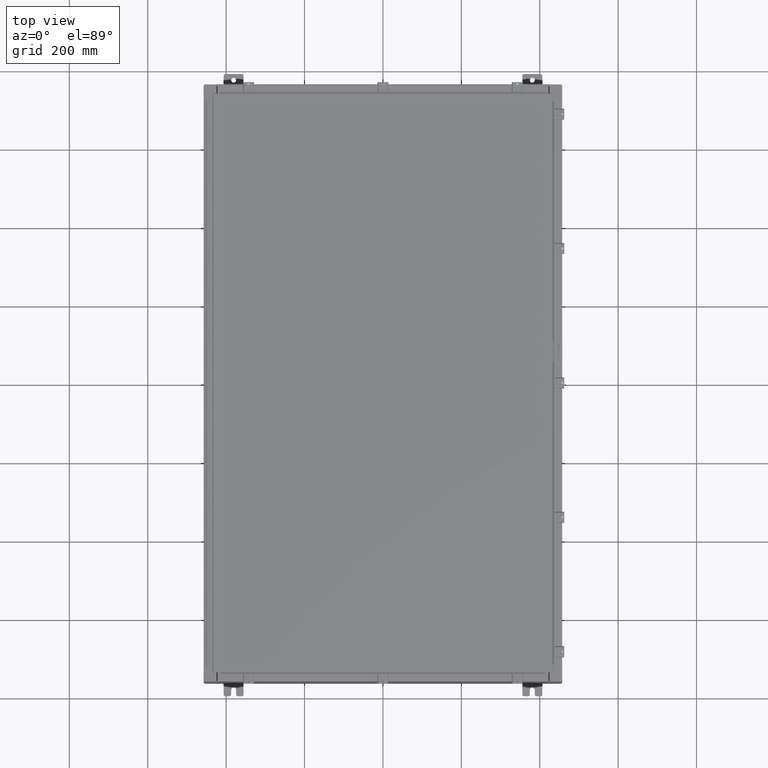
[diagram: clean part render]
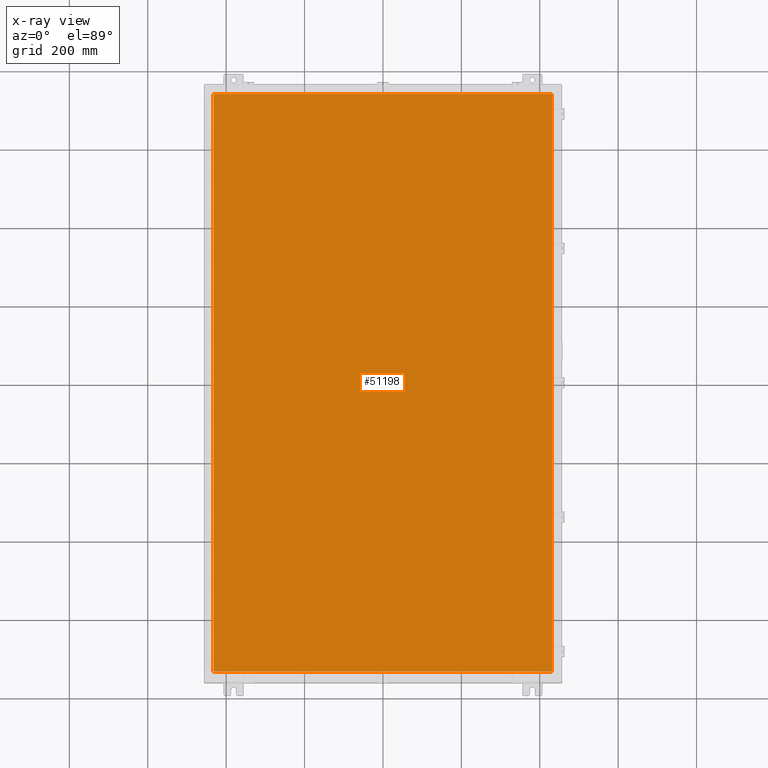
[diagram: x-ray — body ghosted, one internal face saturated and labeled with its STEP entity id]
A machine part, top view, then the same camera in x-ray: the body is ghosted and one INTERNAL B-rep face — a face not visible from any outside direction — is saturated and labeled: STEP entity #51198.
In plain terms, the highlighted planar face has unit normal (0, 0, -1).
Its self-contained STEP definition (entity closure, byte-faithful):
#1041 = DIRECTION ( 'NONE',  ( 0.0000000000000000000, 1.000000000000000000, 0.0000000000000000000 ) ) ;
#3534 = CARTESIAN_POINT ( 'NONE',  ( 16.99030000000000500, 29.00630000000000000, -0.07470000000000015500 ) ) ;
#9214 = EDGE_CURVE ( 'NONE', #43725, #49054, #58401, .T. ) ;
#9564 = VECTOR ( 'NONE', #53541, 39.37007874015748100 ) ;
#11632 = LINE ( 'NONE', #35887, #36538 ) ;
#16459 = DIRECTION ( 'NONE',  ( 0.0000000000000000000, 0.0000000000000000000, -1.000000000000000000 ) ) ;
#18580 = DIRECTION ( 'NONE',  ( -1.000000000000000000, -0.0000000000000000000, -0.0000000000000000000 ) ) ;
#20372 = CARTESIAN_POINT ( 'NONE',  ( -16.99029999999999400, 29.00630000000000000, -0.07470000000000015500 ) ) ;
#22970 = EDGE_LOOP ( 'NONE', ( #43602, #63525, #28099, #31004 ) ) ;
#23276 = EDGE_CURVE ( 'NONE', #49054, #46274, #64084, .T. ) ;
#23353 = DIRECTION ( 'NONE',  ( 0.0000000000000000000, -1.000000000000000000, 0.0000000000000000000 ) ) ;
#27559 = CARTESIAN_POINT ( 'NONE',  ( 16.99030000000000500, -29.00630000000000000, -0.07470000000000015500 ) ) ;
#28099 = ORIENTED_EDGE ( 'NONE', *, *, #9214, .F. ) ;
#31004 = ORIENTED_EDGE ( 'NONE', *, *, #54000, .F. ) ;
#35887 = CARTESIAN_POINT ( 'NONE',  ( 16.99030000000000500, -29.00630000000000000, -0.07470000000000015500 ) ) ;
#36538 = VECTOR ( 'NONE', #1041, 39.37007874015748100 ) ;
#41318 = PLANE ( 'NONE',  #59286 ) ;
#43563 = CARTESIAN_POINT ( 'NONE',  ( -16.99029999999999800, -29.00630000000000300, -0.07469999999999797600 ) ) ;
#43602 = ORIENTED_EDGE ( 'NONE', *, *, #47322, .F. ) ;
#43725 = VERTEX_POINT ( 'NONE', #20372 ) ;
#44021 = VECTOR ( 'NONE', #18580, 39.37007874015748100 ) ;
#46274 = VERTEX_POINT ( 'NONE', #27559 ) ;
#46331 = CARTESIAN_POINT ( 'NONE',  ( 0.0000000000000000000, 0.0000000000000000000, -0.07470000000000015500 ) ) ;
#47322 = EDGE_CURVE ( 'NONE', #46274, #55843, #11632, .T. ) ;
#48308 = VECTOR ( 'NONE', #23353, 39.37007874015748100 ) ;
#48406 = CARTESIAN_POINT ( 'NONE',  ( 16.99030000000000500, 29.00630000000000300, -0.07469999999999797600 ) ) ;
#49054 = VERTEX_POINT ( 'NONE', #57845 ) ;
#49818 = FACE_OUTER_BOUND ( 'NONE', #22970, .T. ) ;
#51198 = ADVANCED_FACE ( 'NONE', ( #49818 ), #41318, .T. ) ;
#51294 = DIRECTION ( 'NONE',  ( -1.000000000000000000, 0.0000000000000000000, -0.0000000000000000000 ) ) ;
#53134 = CARTESIAN_POINT ( 'NONE',  ( -16.99029999999999400, 29.00630000000000000, -0.07469999999999579800 ) ) ;
#53541 = DIRECTION ( 'NONE',  ( 1.000000000000000000, -0.0000000000000000000, -0.0000000000000000000 ) ) ;
#54000 = EDGE_CURVE ( 'NONE', #55843, #43725, #60353, .T. ) ;
#55843 = VERTEX_POINT ( 'NONE', #3534 ) ;
#57845 = CARTESIAN_POINT ( 'NONE',  ( -16.99029999999999800, -29.00630000000000000, -0.07470000000000015500 ) ) ;
#58401 = LINE ( 'NONE', #53134, #48308 ) ;
#59286 = AXIS2_PLACEMENT_3D ( 'NONE', #46331, #16459, #51294 ) ;
#60353 = LINE ( 'NONE', #48406, #44021 ) ;
#63525 = ORIENTED_EDGE ( 'NONE', *, *, #23276, .F. ) ;
#64084 = LINE ( 'NONE', #43563, #9564 ) ;